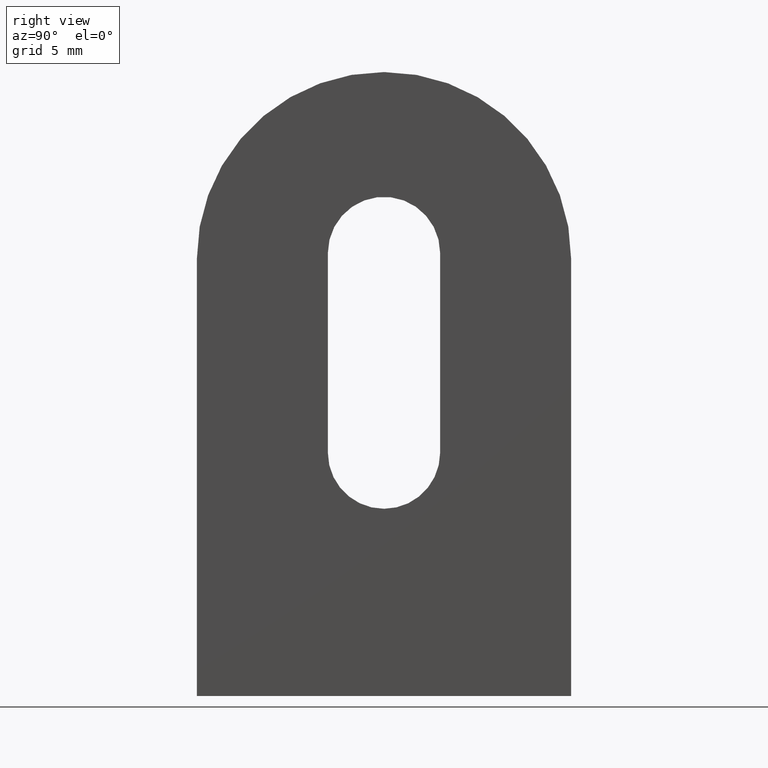
[diagram: clean part render]
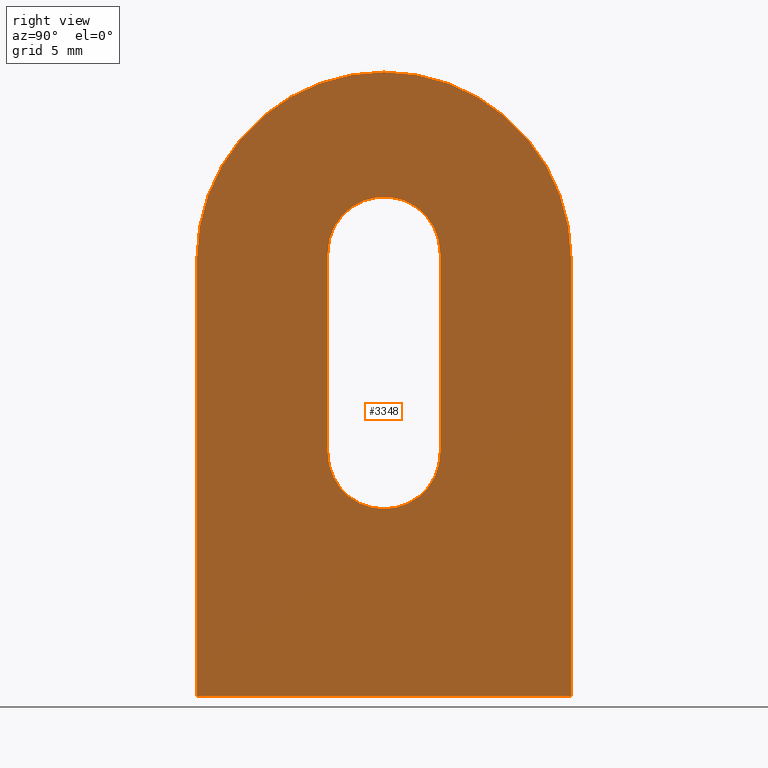
[diagram: same view with one face highlighted and labeled with its STEP entity id]
A machine part, right view. The second image highlights one B-rep face of the part: STEP entity #3348.
In plain terms, the highlighted planar face has unit normal (-1, -0, 0).
Its self-contained STEP definition (entity closure, byte-faithful):
#44 = VERTEX_POINT ( 'NONE', #2334 ) ;
#47 = DIRECTION ( 'NONE',  ( -1.000000000000000000, -0.0000000000000000000, 0.0000000000000000000 ) ) ;
#192 = EDGE_CURVE ( 'NONE', #7512, #6699, #3222, .T. ) ;
#655 = FACE_OUTER_BOUND ( 'NONE', #5488, .T. ) ;
#766 = DIRECTION ( 'NONE',  ( 1.000000000000000000, 0.0000000000000000000, 0.0000000000000000000 ) ) ;
#840 = VERTEX_POINT ( 'NONE', #1124 ) ;
#862 = DIRECTION ( 'NONE',  ( 0.0000000000000000000, 0.0000000000000000000, 1.000000000000000000 ) ) ;
#966 = EDGE_LOOP ( 'NONE', ( #4408, #3400, #1009, #6098, #8155 ) ) ;
#1009 = ORIENTED_EDGE ( 'NONE', *, *, #5207, .F. ) ;
#1124 = CARTESIAN_POINT ( 'NONE',  ( 3.000000000000000000, 14.99999999999999800, 34.99999999999999300 ) ) ;
#1206 = AXIS2_PLACEMENT_3D ( 'NONE', #4506, #2935, #5341 ) ;
#1326 = ORIENTED_EDGE ( 'NONE', *, *, #7542, .F. ) ;
#1425 = FACE_BOUND ( 'NONE', #966, .T. ) ;
#1830 = EDGE_CURVE ( 'NONE', #840, #6825, #9911, .T. ) ;
#1831 = DIRECTION ( 'NONE',  ( -1.000000000000000000, -0.0000000000000000000, 0.0000000000000000000 ) ) ;
#1841 = VERTEX_POINT ( 'NONE', #8670 ) ;
#1898 = CIRCLE ( 'NONE', #1206, 4.500000000000000900 ) ;
#2164 = CARTESIAN_POINT ( 'NONE',  ( 3.000000000000000000, -4.500000000000000900, 35.50000000000000000 ) ) ;
#2231 = AXIS2_PLACEMENT_3D ( 'NONE', #5591, #6420, #2630 ) ;
#2236 = CARTESIAN_POINT ( 'NONE',  ( 3.000000000000000000, 7.966394000823675000E-016, 19.49999999999999600 ) ) ;
#2280 = VECTOR ( 'NONE', #8626, 1000.000000000000000 ) ;
#2334 = CARTESIAN_POINT ( 'NONE',  ( 3.000000000000000000, -4.500000000000000900, 35.50000000000000000 ) ) ;
#2348 = AXIS2_PLACEMENT_3D ( 'NONE', #10056, #1831, #10016 ) ;
#2353 = VERTEX_POINT ( 'NONE', #4152 ) ;
#2368 = ORIENTED_EDGE ( 'NONE', *, *, #192, .F. ) ;
#2627 = CARTESIAN_POINT ( 'NONE',  ( 3.000000000000000000, -15.00000000000000000, -3.061616997868383000E-015 ) ) ;
#2630 = DIRECTION ( 'NONE',  ( 0.0000000000000000000, 0.0000000000000000000, -1.000000000000000000 ) ) ;
#2697 = CARTESIAN_POINT ( 'NONE',  ( 3.000000000000000000, -14.99999999999999800, 34.99999999999999300 ) ) ;
#2707 = CARTESIAN_POINT ( 'NONE',  ( 3.000000000000000000, 4.500000000000003600, 19.49999999999999600 ) ) ;
#2874 = ORIENTED_EDGE ( 'NONE', *, *, #1830, .F. ) ;
#2935 = DIRECTION ( 'NONE',  ( 1.000000000000000000, 0.0000000000000000000, 0.0000000000000000000 ) ) ;
#3120 = EDGE_CURVE ( 'NONE', #6825, #7512, #4868, .T. ) ;
#3222 = LINE ( 'NONE', #2627, #7201 ) ;
#3348 = ADVANCED_FACE ( 'NONE', ( #1425, #655 ), #4264, .F. ) ;
#3400 = ORIENTED_EDGE ( 'NONE', *, *, #5658, .F. ) ;
#3586 = LINE ( 'NONE', #2164, #7428 ) ;
#3762 = CARTESIAN_POINT ( 'NONE',  ( 3.000000000000000000, 15.00000000000000000, -3.061616997868383000E-015 ) ) ;
#3976 = DIRECTION ( 'NONE',  ( 0.0000000000000000000, 0.0000000000000000000, -1.000000000000000000 ) ) ;
#4089 = CIRCLE ( 'NONE', #8948, 15.00000000000000000 ) ;
#4152 = CARTESIAN_POINT ( 'NONE',  ( 3.000000000000000000, 4.500000000000000900, 35.50000000000000000 ) ) ;
#4264 = PLANE ( 'NONE',  #2348 ) ;
#4408 = ORIENTED_EDGE ( 'NONE', *, *, #9192, .F. ) ;
#4506 = CARTESIAN_POINT ( 'NONE',  ( 3.000000000000000000, -1.776356839400250900E-015, 35.50000000000000000 ) ) ;
#4648 = DIRECTION ( 'NONE',  ( 0.0000000000000000000, -1.000000000000000000, 0.0000000000000000000 ) ) ;
#4868 = LINE ( 'NONE', #7869, #9628 ) ;
#5102 = CIRCLE ( 'NONE', #2231, 4.500000000000000900 ) ;
#5207 = EDGE_CURVE ( 'NONE', #8101, #2353, #7787, .T. ) ;
#5264 = CARTESIAN_POINT ( 'NONE',  ( 3.000000000000000000, 4.500000000000000900, 35.50000000000000000 ) ) ;
#5341 = DIRECTION ( 'NONE',  ( 0.0000000000000000000, 0.0000000000000000000, -1.000000000000000000 ) ) ;
#5413 = DIRECTION ( 'NONE',  ( 0.0000000000000000000, 4.956352788505163400E-017, -1.000000000000000000 ) ) ;
#5488 = EDGE_LOOP ( 'NONE', ( #1326, #2368, #6331, #2874, #7986 ) ) ;
#5591 = CARTESIAN_POINT ( 'NONE',  ( 3.000000000000000000, 7.966394000823675000E-016, 19.49999999999999600 ) ) ;
#5658 = EDGE_CURVE ( 'NONE', #2353, #44, #1898, .T. ) ;
#5757 = DIRECTION ( 'NONE',  ( -1.000000000000000000, -0.0000000000000000000, 0.0000000000000000000 ) ) ;
#6045 = CIRCLE ( 'NONE', #8185, 4.500000000000000900 ) ;
#6058 = VECTOR ( 'NONE', #5413, 1000.000000000000000 ) ;
#6098 = ORIENTED_EDGE ( 'NONE', *, *, #6481, .F. ) ;
#6169 = CARTESIAN_POINT ( 'NONE',  ( 3.000000000000000000, 14.99999999999999800, 34.99999999999999300 ) ) ;
#6331 = ORIENTED_EDGE ( 'NONE', *, *, #3120, .F. ) ;
#6408 = AXIS2_PLACEMENT_3D ( 'NONE', #8113, #5757, #862 ) ;
#6420 = DIRECTION ( 'NONE',  ( 1.000000000000000000, 0.0000000000000000000, 0.0000000000000000000 ) ) ;
#6481 = EDGE_CURVE ( 'NONE', #1841, #8101, #5102, .T. ) ;
#6569 = CARTESIAN_POINT ( 'NONE',  ( 3.000000000000000000, 0.0000000000000000000, 34.99999999999999300 ) ) ;
#6670 = DIRECTION ( 'NONE',  ( 0.0000000000000000000, 4.956352788505163400E-017, 1.000000000000000000 ) ) ;
#6699 = VERTEX_POINT ( 'NONE', #2697 ) ;
#6825 = VERTEX_POINT ( 'NONE', #3762 ) ;
#7201 = VECTOR ( 'NONE', #6670, 1000.000000000000000 ) ;
#7310 = CIRCLE ( 'NONE', #6408, 15.00000000000000000 ) ;
#7384 = DIRECTION ( 'NONE',  ( 0.0000000000000000000, 0.0000000000000000000, 1.000000000000000000 ) ) ;
#7428 = VECTOR ( 'NONE', #8679, 1000.000000000000000 ) ;
#7512 = VERTEX_POINT ( 'NONE', #9744 ) ;
#7542 = EDGE_CURVE ( 'NONE', #6699, #10100, #7310, .T. ) ;
#7787 = LINE ( 'NONE', #5264, #2280 ) ;
#7869 = CARTESIAN_POINT ( 'NONE',  ( 3.000000000000000000, 15.00000000000000000, -3.061616997868383000E-015 ) ) ;
#7986 = ORIENTED_EDGE ( 'NONE', *, *, #9347, .F. ) ;
#8064 = CARTESIAN_POINT ( 'NONE',  ( 3.000000000000000000, -4.500000000000000000, 19.49999999999999600 ) ) ;
#8101 = VERTEX_POINT ( 'NONE', #2707 ) ;
#8113 = CARTESIAN_POINT ( 'NONE',  ( 3.000000000000000000, 0.0000000000000000000, 34.99999999999999300 ) ) ;
#8155 = ORIENTED_EDGE ( 'NONE', *, *, #8346, .F. ) ;
#8185 = AXIS2_PLACEMENT_3D ( 'NONE', #2236, #766, #3976 ) ;
#8346 = EDGE_CURVE ( 'NONE', #10118, #1841, #6045, .T. ) ;
#8626 = DIRECTION ( 'NONE',  ( -0.0000000000000000000, -1.626303258728256700E-016, 1.000000000000000000 ) ) ;
#8670 = CARTESIAN_POINT ( 'NONE',  ( 3.000000000000000000, 7.966394000823675000E-016, 14.99999999999999600 ) ) ;
#8679 = DIRECTION ( 'NONE',  ( 0.0000000000000000000, 1.626303258728256700E-016, -1.000000000000000000 ) ) ;
#8948 = AXIS2_PLACEMENT_3D ( 'NONE', #6569, #47, #7384 ) ;
#9192 = EDGE_CURVE ( 'NONE', #44, #10118, #3586, .T. ) ;
#9347 = EDGE_CURVE ( 'NONE', #10100, #840, #4089, .T. ) ;
#9628 = VECTOR ( 'NONE', #4648, 1000.000000000000000 ) ;
#9744 = CARTESIAN_POINT ( 'NONE',  ( 3.000000000000000000, -15.00000000000000000, -3.061616997868383000E-015 ) ) ;
#9911 = LINE ( 'NONE', #6169, #6058 ) ;
#10016 = DIRECTION ( 'NONE',  ( 0.0000000000000000000, 0.0000000000000000000, 1.000000000000000000 ) ) ;
#10056 = CARTESIAN_POINT ( 'NONE',  ( 3.000000000000000000, 0.0000000000000000000, 34.99999999999999300 ) ) ;
#10100 = VERTEX_POINT ( 'NONE', #10434 ) ;
#10118 = VERTEX_POINT ( 'NONE', #8064 ) ;
#10434 = CARTESIAN_POINT ( 'NONE',  ( 3.000000000000000000, 0.0000000000000000000, 49.99999999999999300 ) ) ;